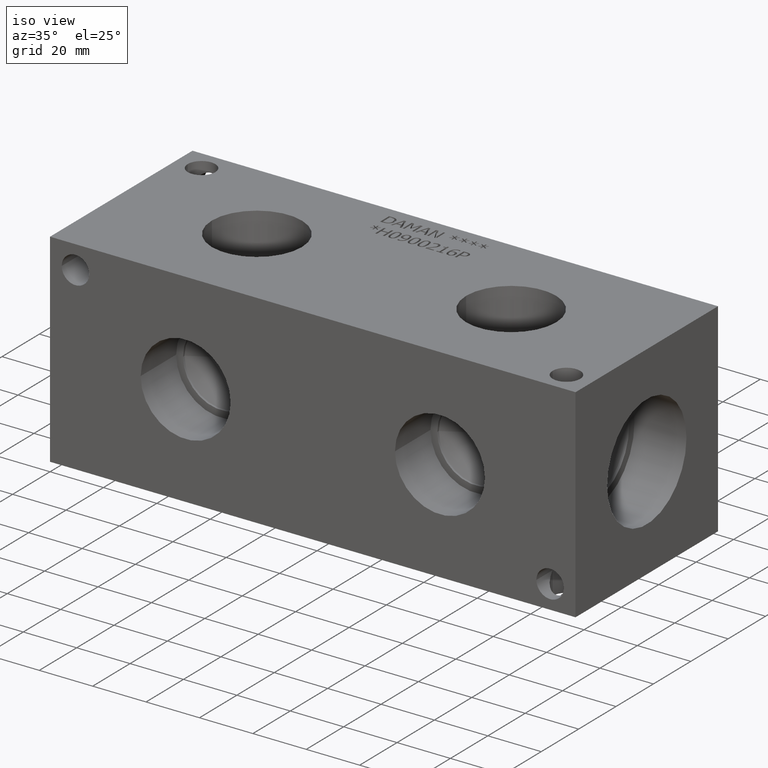
[diagram: clean part render]
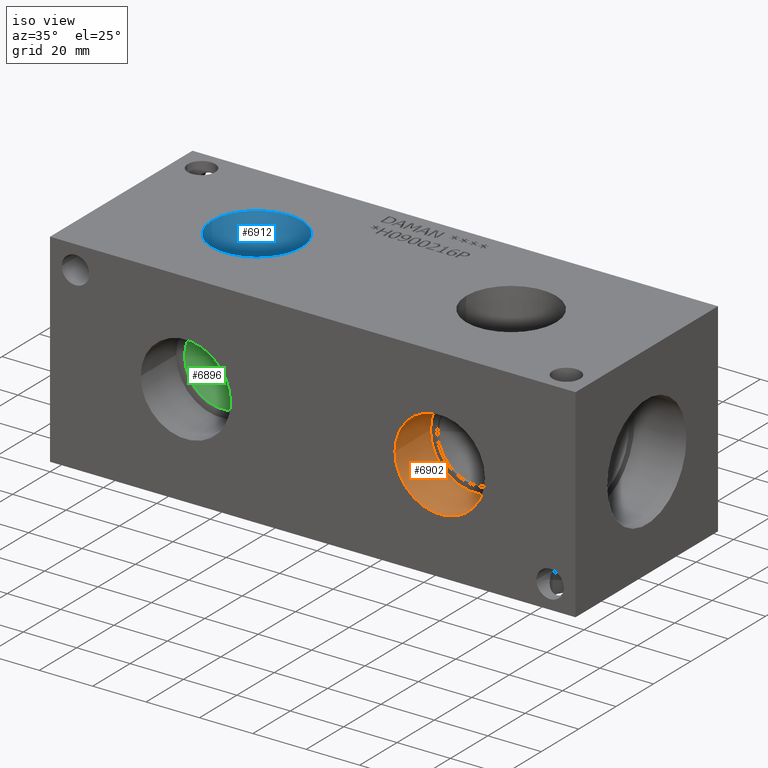
[diagram: same view with three faces highlighted in distinct colors, each labeled with its STEP entity id]
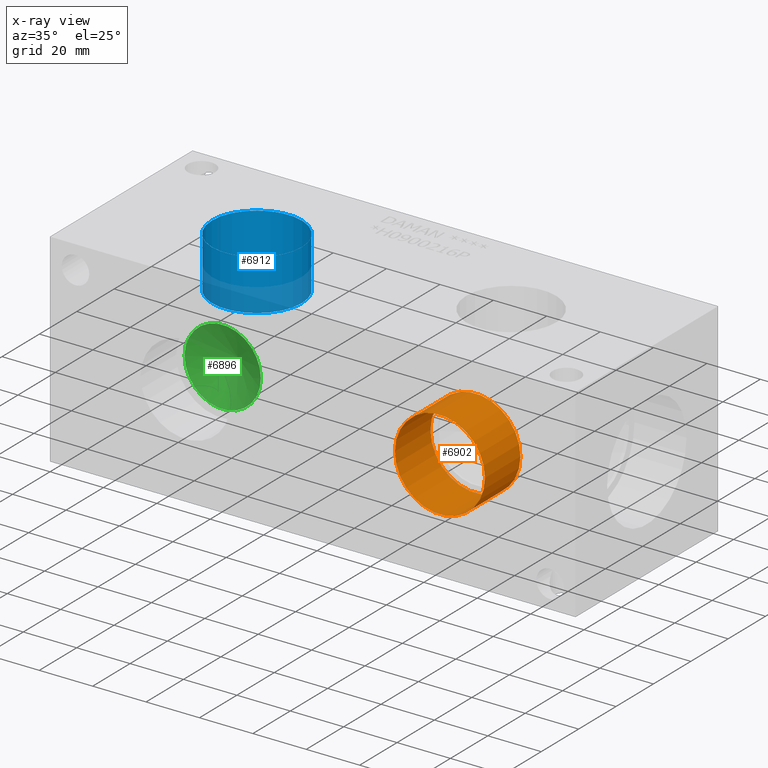
[diagram: x-ray of the same camera — body ghosted, the three highlighted faces saturated]
A machine part, iso view with three faces highlighted in distinct colors.
The next image is the same camera in x-ray (body ghosted, the three faces saturated) — at least one of them is partly hidden behind the body in this view.
Their STEP definitions:

[orange] entity #6902 — the highlighted cylindrical surface (bore or boss wall) has radius 16.8529 mm, axis along (0, -1, 0).
#28=CYLINDRICAL_SURFACE('',#7197,16.8529);
#79=CIRCLE('',#7194,16.8529);
#80=CIRCLE('',#7195,16.8529);
#82=CIRCLE('',#7198,16.8529);
#83=CIRCLE('',#7199,16.8529);
#781=FACE_OUTER_BOUND('',#1166,.T.);
#1166=EDGE_LOOP('',(#5919,#5920,#5921,#5922,#5923,#5924));
#1861=LINE('',#11714,#2544);
#2544=VECTOR('',#8430,16.8529);
#3173=VERTEX_POINT('',#11703);
#3174=VERTEX_POINT('',#11704);
#3176=VERTEX_POINT('',#11710);
#3177=VERTEX_POINT('',#11711);
#4100=EDGE_CURVE('',#3173,#3174,#79,.T.);
#4101=EDGE_CURVE('',#3174,#3173,#80,.T.);
#4103=EDGE_CURVE('',#3176,#3177,#82,.T.);
#4104=EDGE_CURVE('',#3177,#3176,#83,.T.);
#4105=EDGE_CURVE('',#3177,#3174,#1861,.T.);
#5919=ORIENTED_EDGE('',*,*,#4103,.F.);
#5920=ORIENTED_EDGE('',*,*,#4104,.F.);
#5921=ORIENTED_EDGE('',*,*,#4105,.T.);
#5922=ORIENTED_EDGE('',*,*,#4100,.F.);
#5923=ORIENTED_EDGE('',*,*,#4101,.F.);
#5924=ORIENTED_EDGE('',*,*,#4105,.F.);
#6902=ADVANCED_FACE('',(#781),#28,.F.);
#7194=AXIS2_PLACEMENT_3D('',#11705,#8418,#8419);
#7195=AXIS2_PLACEMENT_3D('',#11706,#8420,#8421);
#7197=AXIS2_PLACEMENT_3D('',#11709,#8424,#8425);
#7198=AXIS2_PLACEMENT_3D('',#11712,#8426,#8427);
#7199=AXIS2_PLACEMENT_3D('',#11713,#8428,#8429);
#8418=DIRECTION('center_axis',(0.,-1.,0.));
#8419=DIRECTION('ref_axis',(1.,0.,0.));
#8420=DIRECTION('center_axis',(0.,-1.,0.));
#8421=DIRECTION('ref_axis',(1.,0.,0.));
#8424=DIRECTION('center_axis',(0.,-1.,0.));
#8425=DIRECTION('ref_axis',(1.,0.,0.));
#8426=DIRECTION('center_axis',(0.,1.,0.));
#8427=DIRECTION('ref_axis',(1.,0.,0.));
#8428=DIRECTION('center_axis',(0.,1.,0.));
#8429=DIRECTION('ref_axis',(1.,0.,0.));
#8430=DIRECTION('',(0.,1.,0.));
#11703=CARTESIAN_POINT('',(162.9029,18.9992,38.1));
#11704=CARTESIAN_POINT('',(129.1971,18.9992,38.1));
#11705=CARTESIAN_POINT('Origin',(146.05,18.9992,38.1));
#11706=CARTESIAN_POINT('Origin',(146.05,18.9992,38.1));
#11709=CARTESIAN_POINT('Origin',(146.05,9.4996,38.1));
#11710=CARTESIAN_POINT('',(162.9029,0.,38.1));
#11711=CARTESIAN_POINT('',(129.1971,0.,38.1));
#11712=CARTESIAN_POINT('Origin',(146.05,0.,38.1));
#11713=CARTESIAN_POINT('Origin',(146.05,0.,38.1));
#11714=CARTESIAN_POINT('',(129.1971,9.4996,38.1));

[blue] entity #6912 — the highlighted cylindrical surface (bore or boss wall) has radius 16.8529 mm, axis along (0, 0, 1).
#36=CYLINDRICAL_SURFACE('',#7228,16.8529);
#54=CIRCLE('',#7079,16.8529);
#55=CIRCLE('',#7080,16.8529);
#92=CIRCLE('',#7225,16.8529);
#93=CIRCLE('',#7226,16.8529);
#791=FACE_OUTER_BOUND('',#1177,.T.);
#1177=EDGE_LOOP('',(#5971,#5972,#5973,#5974,#5975,#5976));
#1870=LINE('',#11768,#2553);
#2553=VECTOR('',#8497,16.8529);
#2840=VERTEX_POINT('',#9473);
#2841=VERTEX_POINT('',#9474);
#3191=VERTEX_POINT('',#11761);
#3192=VERTEX_POINT('',#11762);
#3609=EDGE_CURVE('',#2840,#2841,#54,.T.);
#3610=EDGE_CURVE('',#2841,#2840,#55,.T.);
#4130=EDGE_CURVE('',#3191,#3192,#92,.T.);
#4131=EDGE_CURVE('',#3192,#3191,#93,.T.);
#4133=EDGE_CURVE('',#2841,#3192,#1870,.T.);
#5971=ORIENTED_EDGE('',*,*,#3609,.F.);
#5972=ORIENTED_EDGE('',*,*,#3610,.F.);
#5973=ORIENTED_EDGE('',*,*,#4133,.T.);
#5974=ORIENTED_EDGE('',*,*,#4130,.F.);
#5975=ORIENTED_EDGE('',*,*,#4131,.F.);
#5976=ORIENTED_EDGE('',*,*,#4133,.F.);
#6912=ADVANCED_FACE('',(#791),#36,.F.);
#7079=AXIS2_PLACEMENT_3D('',#9475,#7910,#7911);
#7080=AXIS2_PLACEMENT_3D('',#9476,#7912,#7913);
#7225=AXIS2_PLACEMENT_3D('',#11763,#8489,#8490);
#7226=AXIS2_PLACEMENT_3D('',#11764,#8491,#8492);
#7228=AXIS2_PLACEMENT_3D('',#11767,#8495,#8496);
#7910=DIRECTION('center_axis',(0.,0.,-1.));
#7911=DIRECTION('ref_axis',(1.,0.,0.));
#7912=DIRECTION('center_axis',(0.,0.,-1.));
#7913=DIRECTION('ref_axis',(1.,0.,0.));
#8489=DIRECTION('center_axis',(0.,0.,1.));
#8490=DIRECTION('ref_axis',(1.,0.,0.));
#8491=DIRECTION('center_axis',(0.,0.,1.));
#8492=DIRECTION('ref_axis',(1.,0.,0.));
#8495=DIRECTION('center_axis',(0.,0.,1.));
#8496=DIRECTION('ref_axis',(1.,0.,0.));
#8497=DIRECTION('',(0.,0.,-1.));
#9473=CARTESIAN_POINT('',(67.6529,38.1,76.2));
#9474=CARTESIAN_POINT('',(33.9471,38.1,76.2));
#9475=CARTESIAN_POINT('Origin',(50.8,38.1,76.2));
#9476=CARTESIAN_POINT('Origin',(50.8,38.1,76.2));
#11761=CARTESIAN_POINT('',(67.6529,38.1,57.2008));
#11762=CARTESIAN_POINT('',(33.9471,38.1,57.2008));
#11763=CARTESIAN_POINT('Origin',(50.8,38.1,57.2008));
#11764=CARTESIAN_POINT('Origin',(50.8,38.1,57.2008));
#11767=CARTESIAN_POINT('Origin',(50.8,38.1,66.7004));
#11768=CARTESIAN_POINT('',(33.9471,38.1,66.7004));

[green] entity #6896 — the highlighted conical surface has half-angle 60 deg.
#44=CONICAL_SURFACE('',#7179,7.14375,1.0471975511966);
#70=CIRCLE('',#7180,14.2875);
#71=CIRCLE('',#7181,14.2875);
#775=FACE_OUTER_BOUND('',#1158,.T.);
#1158=EDGE_LOOP('',(#5894,#5895,#5896,#5897));
#1857=LINE('',#11678,#2540);
#2540=VECTOR('',#8388,7.14375);
#3162=VERTEX_POINT('',#11674);
#3163=VERTEX_POINT('',#11675);
#3164=VERTEX_POINT('',#11677);
#4087=EDGE_CURVE('',#3162,#3163,#70,.T.);
#4088=EDGE_CURVE('',#3163,#3164,#1857,.T.);
#4089=EDGE_CURVE('',#3163,#3162,#71,.T.);
#5894=ORIENTED_EDGE('',*,*,#4087,.T.);
#5895=ORIENTED_EDGE('',*,*,#4088,.T.);
#5896=ORIENTED_EDGE('',*,*,#4088,.F.);
#5897=ORIENTED_EDGE('',*,*,#4089,.T.);
#6896=ADVANCED_FACE('',(#775),#44,.F.);
#7179=AXIS2_PLACEMENT_3D('',#11673,#8384,#8385);
#7180=AXIS2_PLACEMENT_3D('',#11676,#8386,#8387);
#7181=AXIS2_PLACEMENT_3D('',#11679,#8389,#8390);
#8384=DIRECTION('center_axis',(0.,-1.,0.));
#8385=DIRECTION('ref_axis',(1.,0.,0.));
#8386=DIRECTION('center_axis',(0.,-1.,0.));
#8387=DIRECTION('ref_axis',(1.,0.,0.));
#8388=DIRECTION('',(0.866025403784438,0.5,1.06057523872491E-16));
#8389=DIRECTION('center_axis',(0.,-1.,0.));
#8390=DIRECTION('ref_axis',(1.,0.,0.));
#11673=CARTESIAN_POINT('Origin',(50.8,23.9485359855234,38.1));
#11674=CARTESIAN_POINT('',(65.0875,19.82409,38.1));
#11675=CARTESIAN_POINT('',(36.5125,19.82409,38.1));
#11676=CARTESIAN_POINT('Origin',(50.8,19.82409,38.1));
#11677=CARTESIAN_POINT('',(50.8,28.0729819710468,38.1));
#11678=CARTESIAN_POINT('',(43.65625,23.9485359855234,38.1));
#11679=CARTESIAN_POINT('Origin',(50.8,19.82409,38.1));